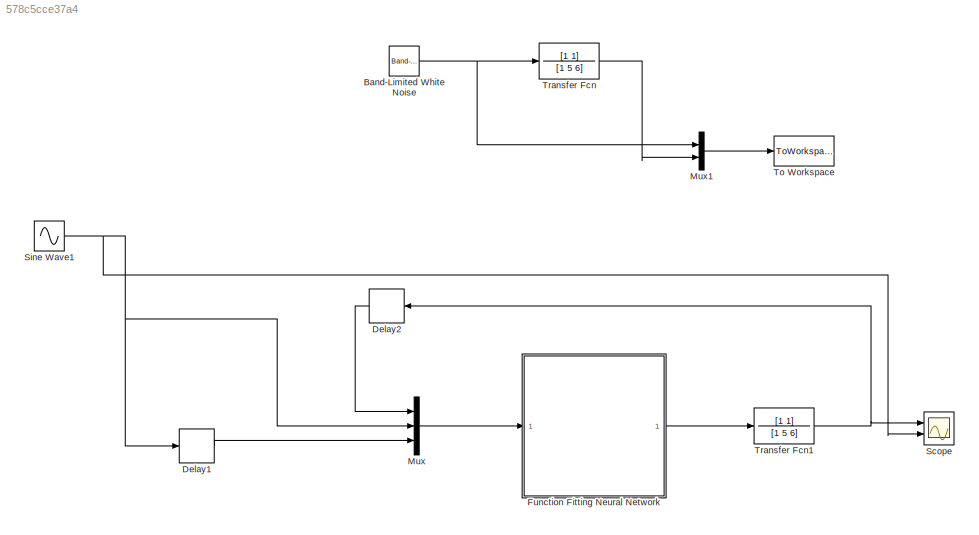
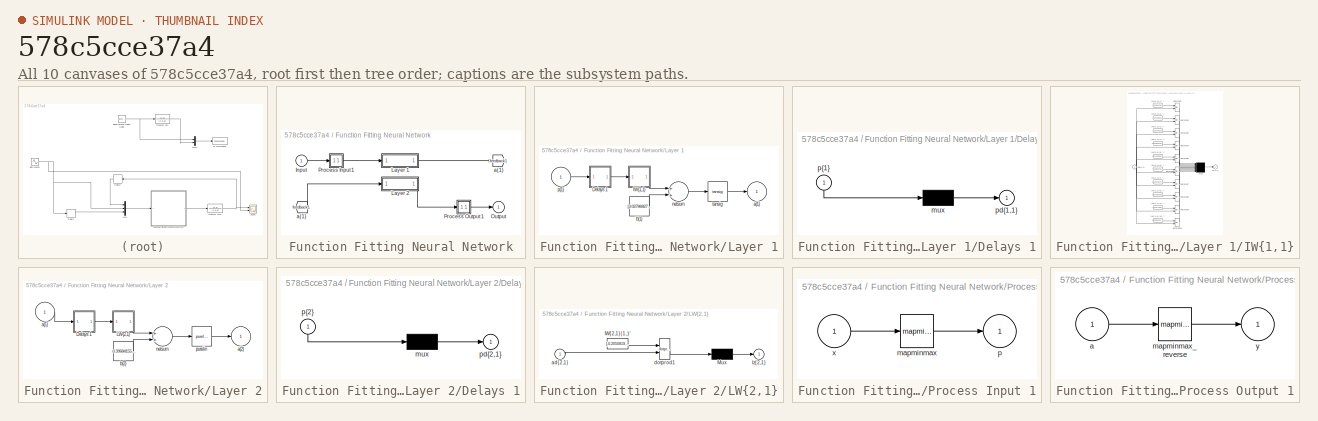
[diagram: thumbnail index - all 10 canvases of the model, root first then tree order]
MODEL slx_578c5cce37a4
KIND model
CONFIG AbsTol = auto
CONFIG EnableMultiTasking = off
CONFIG FixedStep = .001
CONFIG MaxStep = auto
CONFIG MinStep = auto
CONFIG RelTol = 1e-3
CONFIG SampleTimeConstraint = Unconstrained
CONFIG Solver = FixedStepAuto
CONFIG SolverName = FixedStepAuto
CONFIG StartTime = 0.0
CONFIG StopTime = 100.0
BLOCK [Reference] Band-Limited White Noise  REF=simulink/Sources/Band-Limited
White Noise
  Ports = [0, 1]
  SourceBlock = simulink/Sources/Band-Limited\nWhite Noise
  SourceType = Band-Limited White Noise.
BLOCK [Delay] Delay1
  DelayLength = 1
  InputPortMap = u0
  Ports = [1, 1]
BLOCK [Delay] Delay2
  DelayLength = 1
  InputPortMap = u0
  Ports = [1, 1]
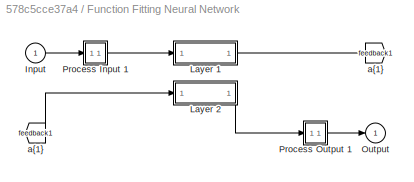
BLOCK [SubSystem] Function Fitting Neural Network
  Ports = [1, 1]
  RequestExecContextInheritance = off
  Variant = off
BLOCK [From] Function Fitting Neural Network/ a{1} 
  GotoTag = feedback1
BLOCK [Inport] Function Fitting Neural Network/Input
  IconDisplay = Port number
  PortDimensions = 3
BLOCK [SubSystem] Function Fitting Neural Network/Layer 1
  Ports = [1, 1]
  RequestExecContextInheritance = off
  Variant = off
BLOCK [SubSystem] Function Fitting Neural Network/Layer 1/Delays 1
  Ports = [1, 1]
  RequestExecContextInheritance = off
  Variant = off
BLOCK [Mux] Function Fitting Neural Network/Layer 1/Delays 1/mux
  Inputs = 1
  Ports = [1, 1]
BLOCK [Outport] Function Fitting Neural Network/Layer 1/Delays 1/pd{1,1}
  IconDisplay = Port number
BLOCK [Inport] Function Fitting Neural Network/Layer 1/Delays 1/p{1}
  IconDisplay = Port number
  PortDimensions = 3
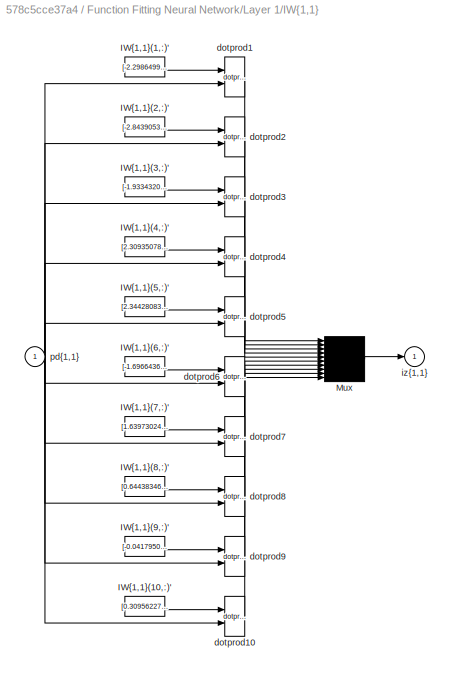
BLOCK [SubSystem] Function Fitting Neural Network/Layer 1/IW{1,1}
  Ports = [1, 1]
  RequestExecContextInheritance = off
  Variant = off
BLOCK [Constant] Function Fitting Neural Network/Layer 1/IW{1,1}/IW{1,1}(1,:)'
  Value = [-2.2986499948778043;0.10955658168142436;1.9476513026367046]
BLOCK [Constant] Function Fitting Neural Network/Layer 1/IW{1,1}/IW{1,1}(10,:)'
  Value = [0.30956227240271739;2.2849398063670554;-0.49694133993665979]
BLOCK [Constant] Function Fitting Neural Network/Layer 1/IW{1,1}/IW{1,1}(2,:)'
  Value = [-2.8439053123029399;0.51606546871531933;-0.89995697105497174]
BLOCK [Constant] Function Fitting Neural Network/Layer 1/IW{1,1}/IW{1,1}(3,:)'
  Value = [-1.9334320760932249;1.7604734698956306;-0.90395741787255701]
BLOCK [Constant] Function Fitting Neural Network/Layer 1/IW{1,1}/IW{1,1}(4,:)'
  Value = [2.3093507897858183;-1.5728622461586195;0.42358821003391045]
BLOCK [Constant] Function Fitting Neural Network/Layer 1/IW{1,1}/IW{1,1}(5,:)'
  Value = [2.3442808395133659;2.3348340091128472;-0.082940184504028389]
BLOCK [Constant] Function Fitting Neural Network/Layer 1/IW{1,1}/IW{1,1}(6,:)'
  Value = [-1.6966436804572653;0.75220733080162694;1.7439871273627019]
BLOCK [Constant] Function Fitting Neural Network/Layer 1/IW{1,1}/IW{1,1}(7,:)'
  Value = [1.6397302479876488;-0.66650618784463644;1.4723578034861011]
BLOCK [Constant] Function Fitting Neural Network/Layer 1/IW{1,1}/IW{1,1}(8,:)'
  Value = [0.6443834695499564;-2.4532040696203281;-0.41176087411319112]
BLOCK [Constant] Function Fitting Neural Network/Layer 1/IW{1,1}/IW{1,1}(9,:)'
  Value = [-0.041795085758054309;2.72068034273655;1.2454863331037882]
BLOCK [Mux] Function Fitting Neural Network/Layer 1/IW{1,1}/Mux
  Inputs = 10
  Ports = [10, 1]
BLOCK [Reference] Function Fitting Neural Network/Layer 1/IW{1,1}/dotprod1  REF=neural/Weight Functions/dotprod
  Ports = [2, 1]
  SourceBlock = neural/Weight Functions/dotprod
  SourceType = DOTPROD
BLOCK [Reference] Function Fitting Neural Network/Layer 1/IW{1,1}/dotprod10  REF=neural/Weight Functions/dotprod
  Ports = [2, 1]
  SourceBlock = neural/Weight Functions/dotprod
  SourceType = DOTPROD
BLOCK [Reference] Function Fitting Neural Network/Layer 1/IW{1,1}/dotprod2  REF=neural/Weight Functions/dotprod
  Ports = [2, 1]
  SourceBlock = neural/Weight Functions/dotprod
  SourceType = DOTPROD
BLOCK [Reference] Function Fitting Neural Network/Layer 1/IW{1,1}/dotprod3  REF=neural/Weight Functions/dotprod
  Ports = [2, 1]
  SourceBlock = neural/Weight Functions/dotprod
  SourceType = DOTPROD
BLOCK [Reference] Function Fitting Neural Network/Layer 1/IW{1,1}/dotprod4  REF=neural/Weight Functions/dotprod
  Ports = [2, 1]
  SourceBlock = neural/Weight Functions/dotprod
  SourceType = DOTPROD
BLOCK [Reference] Function Fitting Neural Network/Layer 1/IW{1,1}/dotprod5  REF=neural/Weight Functions/dotprod
  Ports = [2, 1]
  SourceBlock = neural/Weight Functions/dotprod
  SourceType = DOTPROD
BLOCK [Reference] Function Fitting Neural Network/Layer 1/IW{1,1}/dotprod6  REF=neural/Weight Functions/dotprod
  Ports = [2, 1]
  SourceBlock = neural/Weight Functions/dotprod
  SourceType = DOTPROD
BLOCK [Reference] Function Fitting Neural Network/Layer 1/IW{1,1}/dotprod7  REF=neural/Weight Functions/dotprod
  Ports = [2, 1]
  SourceBlock = neural/Weight Functions/dotprod
  SourceType = DOTPROD
BLOCK [Reference] Function Fitting Neural Network/Layer 1/IW{1,1}/dotprod8  REF=neural/Weight Functions/dotprod
  Ports = [2, 1]
  SourceBlock = neural/Weight Functions/dotprod
  SourceType = DOTPROD
BLOCK [Reference] Function Fitting Neural Network/Layer 1/IW{1,1}/dotprod9  REF=neural/Weight Functions/dotprod
  Ports = [2, 1]
  SourceBlock = neural/Weight Functions/dotprod
  SourceType = DOTPROD
BLOCK [Outport] Function Fitting Neural Network/Layer 1/IW{1,1}/iz{1,1}
  IconDisplay = Port number
BLOCK [Inport] Function Fitting Neural Network/Layer 1/IW{1,1}/pd{1,1}
  IconDisplay = Port number
  PortDimensions = 3
BLOCK [Outport] Function Fitting Neural Network/Layer 1/a{1}
  IconDisplay = Port number
  InitialOutput = [0;0;0;0;0;0;0;0;0;0]
BLOCK [Constant] Function Fitting Neural Network/Layer 1/b{1}
  Value = [3.0278682788171691;2.3397372800917617;1.904979881168954;-0.17330439956063737;-0.76059833715058711;0.014786798737994919;1.5622151778876319;1.9807663215234677;1.7554246268083704;3.1840488115266914]
BLOCK [Sum] Function Fitting Neural Network/Layer 1/netsum
  Inputs = 2
  Ports = [2, 1]
BLOCK [Inport] Function Fitting Neural Network/Layer 1/p{1}
  IconDisplay = Port number
  PortDimensions = 3
BLOCK [Reference] Function Fitting Neural Network/Layer 1/tansig  REF=neural/Transfer Functions/tansig
  Ports = [1, 1]
  SourceBlock = neural/Transfer Functions/tansig
  SourceType = TANSIG
BLOCK [SubSystem] Function Fitting Neural Network/Layer 2
  Ports = [1, 1]
  RequestExecContextInheritance = off
  Variant = off
BLOCK [SubSystem] Function Fitting Neural Network/Layer 2/Delays 1
  Ports = [1, 1]
  RequestExecContextInheritance = off
  Variant = off
BLOCK [Mux] Function Fitting Neural Network/Layer 2/Delays 1/mux
  Inputs = 1
  Ports = [1, 1]
BLOCK [Outport] Function Fitting Neural Network/Layer 2/Delays 1/pd{2,1}
  IconDisplay = Port number
BLOCK [Inport] Function Fitting Neural Network/Layer 2/Delays 1/p{2}
  IconDisplay = Port number
  PortDimensions = 10
BLOCK [SubSystem] Function Fitting Neural Network/Layer 2/LW{2,1}
  Ports = [1, 1]
  RequestExecContextInheritance = off
  Variant = off
BLOCK [Constant] Function Fitting Neural Network/Layer 2/LW{2,1}/IW{2,1}(1,:)'
  Value = [-0.20508197062645117;-0.0037097362488426626;0.023149524271812924;-0.022149955414662817;-0.0010274849304613492;1.250084595743381;-0.020689426426319695;-0.13163286470551105;0.017002161658108545;0.6922064193189893]
BLOCK [Mux] Function Fitting Neural Network/Layer 2/LW{2,1}/Mux
  Inputs = 1
  Ports = [1, 1]
BLOCK [Inport] Function Fitting Neural Network/Layer 2/LW{2,1}/ad{2,1}
  IconDisplay = Port number
  PortDimensions = 10
BLOCK [Reference] Function Fitting Neural Network/Layer 2/LW{2,1}/dotprod1  REF=neural/Weight Functions/dotprod
  Ports = [2, 1]
  SourceBlock = neural/Weight Functions/dotprod
  SourceType = DOTPROD
BLOCK [Outport] Function Fitting Neural Network/Layer 2/LW{2,1}/lz{2,1}
  IconDisplay = Port number
BLOCK [Inport] Function Fitting Neural Network/Layer 2/a{1} 
  IconDisplay = Port number
  PortDimensions = 10
BLOCK [Outport] Function Fitting Neural Network/Layer 2/a{2}
  IconDisplay = Port number
  InitialOutput = 0
BLOCK [Constant] Function Fitting Neural Network/Layer 2/b{2}
  Value = -0.39684155696984097
BLOCK [Sum] Function Fitting Neural Network/Layer 2/netsum
  Inputs = 2
  Ports = [2, 1]
BLOCK [Reference] Function Fitting Neural Network/Layer 2/purelin  REF=neural/Transfer Functions/purelin
  Ports = [1, 1]
  SourceBlock = neural/Transfer Functions/purelin
  SourceType = PURELIN
BLOCK [Outport] Function Fitting Neural Network/Output
  IconDisplay = Port number
  InitialOutput = 0
BLOCK [SubSystem] Function Fitting Neural Network/Process Input 1
  Ports = [1, 1]
  RequestExecContextInheritance = off
  Variant = off
BLOCK [Reference] Function Fitting Neural Network/Process Input 1/mapminmax  REF=neural/Processing Functions/mapminmax
  Ports = [1, 1]
  SourceBlock = neural/Processing Functions/mapminmax
  SourceType = MAPMINMAX Preprocess
BLOCK [Outport] Function Fitting Neural Network/Process Input 1/p
  IconDisplay = Port number
  PortDimensions = 3
BLOCK [Inport] Function Fitting Neural Network/Process Input 1/x
  IconDisplay = Port number
  PortDimensions = 3
BLOCK [SubSystem] Function Fitting Neural Network/Process Output 1
  Ports = [1, 1]
  RequestExecContextInheritance = off
  Variant = off
BLOCK [Inport] Function Fitting Neural Network/Process Output 1/a
  IconDisplay = Port number
  PortDimensions = 1
BLOCK [Reference] Function Fitting Neural Network/Process Output 1/mapminmax_reverse  REF=neural/Processing Functions/mapminmax_reverse
  Ports = [1, 1]
  SourceBlock = neural/Processing Functions/mapminmax_reverse
  SourceType = MAPMINMAX Reverse Process
BLOCK [Outport] Function Fitting Neural Network/Process Output 1/y
  IconDisplay = Port number
  PortDimensions = 1
BLOCK [Goto] Function Fitting Neural Network/a{1}
  GotoTag = feedback1
BLOCK [Mux] Mux
  DisplayOption = bar
  Inputs = 3
  Ports = [3, 1]
BLOCK [Mux] Mux1
  DisplayOption = bar
  Inputs = 2
  Ports = [2, 1]
BLOCK [Scope] Scope
  NumInputPorts = 2
  Ports = [2]
  ScopeSpecificationString = Simulink.scopes.TimeScopeBlockCfg('CurrentConfiguration', extmgr.ConfigurationSet(extmgr.Configuration('Core','General UI',true),extmgr.Configuration('Core','Source UI',true),extmgr.Configuration('Sources','WiredSimulink',true,'DataLoggingVariableName','ScopeData1'),extmgr.Configuration('Visuals','Time Domain',true,'SerializedDisplays',{struct('MinYLimReal','-1.80244','MaxYLimReal','1.80313','YLab...<+1486ch>
BLOCK [Sin] Sine Wave1
  Frequency = 2
  Ports = [0, 1]
  SampleTime = 0
BLOCK [ToWorkspace] To Workspace
  FixptAsFi = on
  MaxDataPoints = inf
  Ports = [1]
  SampleTime = -1
  Save2DSignal = 3-D array (concatenate along third dimension)
  SaveFormat = Timeseries
  VariableName = simout
BLOCK [TransferFcn] Transfer Fcn
  Denominator = [1 5 6]
  Numerator = [1 1]
BLOCK [TransferFcn] Transfer Fcn1
  Denominator = [1 5 6]
  Numerator = [1 1]
NET Band-Limited White Noise:1 -> Mux1:1, Transfer Fcn:1
LINE Delay1:1 -> Mux:3
LINE Delay2:1 -> Mux:1
LINE Function Fitting Neural Network/ a{1} :1 -> Function Fitting Neural Network/Layer 2:1
LINE Function Fitting Neural Network/Input:1 -> Function Fitting Neural Network/Process Input 1:1
LINE Function Fitting Neural Network/Layer 1/Delays 1/mux:1 -> Function Fitting Neural Network/Layer 1/Delays 1/pd{1,1}:1
LINE Function Fitting Neural Network/Layer 1/Delays 1/p{1}:1 -> Function Fitting Neural Network/Layer 1/Delays 1/mux:1
LINE Function Fitting Neural Network/Layer 1/Delays 1:1 -> Function Fitting Neural Network/Layer 1/IW{1,1}:1
LINE Function Fitting Neural Network/Layer 1/IW{1,1}/IW{1,1}(1,:)':1 -> Function Fitting Neural Network/Layer 1/IW{1,1}/dotprod1:1
LINE Function Fitting Neural Network/Layer 1/IW{1,1}/IW{1,1}(10,:)':1 -> Function Fitting Neural Network/Layer 1/IW{1,1}/dotprod10:1
LINE Function Fitting Neural Network/Layer 1/IW{1,1}/IW{1,1}(2,:)':1 -> Function Fitting Neural Network/Layer 1/IW{1,1}/dotprod2:1
LINE Function Fitting Neural Network/Layer 1/IW{1,1}/IW{1,1}(3,:)':1 -> Function Fitting Neural Network/Layer 1/IW{1,1}/dotprod3:1
LINE Function Fitting Neural Network/Layer 1/IW{1,1}/IW{1,1}(4,:)':1 -> Function Fitting Neural Network/Layer 1/IW{1,1}/dotprod4:1
LINE Function Fitting Neural Network/Layer 1/IW{1,1}/IW{1,1}(5,:)':1 -> Function Fitting Neural Network/Layer 1/IW{1,1}/dotprod5:1
LINE Function Fitting Neural Network/Layer 1/IW{1,1}/IW{1,1}(6,:)':1 -> Function Fitting Neural Network/Layer 1/IW{1,1}/dotprod6:1
LINE Function Fitting Neural Network/Layer 1/IW{1,1}/IW{1,1}(7,:)':1 -> Function Fitting Neural Network/Layer 1/IW{1,1}/dotprod7:1
LINE Function Fitting Neural Network/Layer 1/IW{1,1}/IW{1,1}(8,:)':1 -> Function Fitting Neural Network/Layer 1/IW{1,1}/dotprod8:1
LINE Function Fitting Neural Network/Layer 1/IW{1,1}/IW{1,1}(9,:)':1 -> Function Fitting Neural Network/Layer 1/IW{1,1}/dotprod9:1
LINE Function Fitting Neural Network/Layer 1/IW{1,1}/Mux:1 -> Function Fitting Neural Network/Layer 1/IW{1,1}/iz{1,1}:1
LINE Function Fitting Neural Network/Layer 1/IW{1,1}/dotprod10:1 -> Function Fitting Neural Network/Layer 1/IW{1,1}/Mux:10
LINE Function Fitting Neural Network/Layer 1/IW{1,1}/dotprod1:1 -> Function Fitting Neural Network/Layer 1/IW{1,1}/Mux:1
LINE Function Fitting Neural Network/Layer 1/IW{1,1}/dotprod2:1 -> Function Fitting Neural Network/Layer 1/IW{1,1}/Mux:2
LINE Function Fitting Neural Network/Layer 1/IW{1,1}/dotprod3:1 -> Function Fitting Neural Network/Layer 1/IW{1,1}/Mux:3
LINE Function Fitting Neural Network/Layer 1/IW{1,1}/dotprod4:1 -> Function Fitting Neural Network/Layer 1/IW{1,1}/Mux:4
LINE Function Fitting Neural Network/Layer 1/IW{1,1}/dotprod5:1 -> Function Fitting Neural Network/Layer 1/IW{1,1}/Mux:5
LINE Function Fitting Neural Network/Layer 1/IW{1,1}/dotprod6:1 -> Function Fitting Neural Network/Layer 1/IW{1,1}/Mux:6
LINE Function Fitting Neural Network/Layer 1/IW{1,1}/dotprod7:1 -> Function Fitting Neural Network/Layer 1/IW{1,1}/Mux:7
LINE Function Fitting Neural Network/Layer 1/IW{1,1}/dotprod8:1 -> Function Fitting Neural Network/Layer 1/IW{1,1}/Mux:8
LINE Function Fitting Neural Network/Layer 1/IW{1,1}/dotprod9:1 -> Function Fitting Neural Network/Layer 1/IW{1,1}/Mux:9
NET Function Fitting Neural Network/Layer 1/IW{1,1}/pd{1,1}:1 -> Function Fitting Neural Network/Layer 1/IW{1,1}/dotprod10:2, Function Fitting Neural Network/Layer 1/IW{1,1}/dotprod1:2, Function Fitting Neural Network/Layer 1/IW{1,1}/dotprod2:2, Function Fitting Neural Network/Layer 1/IW{1,1}/dotprod3:2, Function Fitting Neural Network/Layer 1/IW{1,1}/dotprod4:2, Function Fitting Neural Network/Layer 1/IW{1,1}/dotprod5:2, Function Fitting Neural Network/Layer 1/IW{1,1}/dotprod6:2, Function Fitting Neural Network/Layer 1/IW{1,1}/dotprod7:2, Function Fitting Neural Network/Layer 1/IW{1,1}/dotprod8:2, Function Fitting Neural Network/Layer 1/IW{1,1}/dotprod9:2
LINE Function Fitting Neural Network/Layer 1/IW{1,1}:1 -> Function Fitting Neural Network/Layer 1/netsum:1
LINE Function Fitting Neural Network/Layer 1/b{1}:1 -> Function Fitting Neural Network/Layer 1/netsum:2
LINE Function Fitting Neural Network/Layer 1/netsum:1 -> Function Fitting Neural Network/Layer 1/tansig:1
LINE Function Fitting Neural Network/Layer 1/p{1}:1 -> Function Fitting Neural Network/Layer 1/Delays 1:1
LINE Function Fitting Neural Network/Layer 1/tansig:1 -> Function Fitting Neural Network/Layer 1/a{1}:1
LINE Function Fitting Neural Network/Layer 1:1 -> Function Fitting Neural Network/a{1}:1
LINE Function Fitting Neural Network/Layer 2/Delays 1/mux:1 -> Function Fitting Neural Network/Layer 2/Delays 1/pd{2,1}:1
LINE Function Fitting Neural Network/Layer 2/Delays 1/p{2}:1 -> Function Fitting Neural Network/Layer 2/Delays 1/mux:1
LINE Function Fitting Neural Network/Layer 2/Delays 1:1 -> Function Fitting Neural Network/Layer 2/LW{2,1}:1
LINE Function Fitting Neural Network/Layer 2/LW{2,1}/IW{2,1}(1,:)':1 -> Function Fitting Neural Network/Layer 2/LW{2,1}/dotprod1:1
LINE Function Fitting Neural Network/Layer 2/LW{2,1}/Mux:1 -> Function Fitting Neural Network/Layer 2/LW{2,1}/lz{2,1}:1
LINE Function Fitting Neural Network/Layer 2/LW{2,1}/ad{2,1}:1 -> Function Fitting Neural Network/Layer 2/LW{2,1}/dotprod1:2
LINE Function Fitting Neural Network/Layer 2/LW{2,1}/dotprod1:1 -> Function Fitting Neural Network/Layer 2/LW{2,1}/Mux:1
LINE Function Fitting Neural Network/Layer 2/LW{2,1}:1 -> Function Fitting Neural Network/Layer 2/netsum:1
LINE Function Fitting Neural Network/Layer 2/a{1} :1 -> Function Fitting Neural Network/Layer 2/Delays 1:1
LINE Function Fitting Neural Network/Layer 2/b{2}:1 -> Function Fitting Neural Network/Layer 2/netsum:2
LINE Function Fitting Neural Network/Layer 2/netsum:1 -> Function Fitting Neural Network/Layer 2/purelin:1
LINE Function Fitting Neural Network/Layer 2/purelin:1 -> Function Fitting Neural Network/Layer 2/a{2}:1
LINE Function Fitting Neural Network/Layer 2:1 -> Function Fitting Neural Network/Process Output 1:1
LINE Function Fitting Neural Network/Process Input 1/mapminmax:1 -> Function Fitting Neural Network/Process Input 1/p:1
LINE Function Fitting Neural Network/Process Input 1/x:1 -> Function Fitting Neural Network/Process Input 1/mapminmax:1
LINE Function Fitting Neural Network/Process Input 1:1 -> Function Fitting Neural Network/Layer 1:1
LINE Function Fitting Neural Network/Process Output 1/a:1 -> Function Fitting Neural Network/Process Output 1/mapminmax_reverse:1
LINE Function Fitting Neural Network/Process Output 1/mapminmax_reverse:1 -> Function Fitting Neural Network/Process Output 1/y:1
LINE Function Fitting Neural Network/Process Output 1:1 -> Function Fitting Neural Network/Output:1
LINE Function Fitting Neural Network:1 -> Transfer Fcn1:1
LINE Mux1:1 -> To Workspace:1
LINE Mux:1 -> Function Fitting Neural Network:1
NET Sine Wave1:1 -> Delay1:1, Mux:2, Scope:2
NET Transfer Fcn1:1 -> Delay2:1, Scope:1
LINE Transfer Fcn:1 -> Mux1:2
note: NET lines group one-source signal fan-out (src -> all destinations, sorted); 1:1 wires keep LINE
